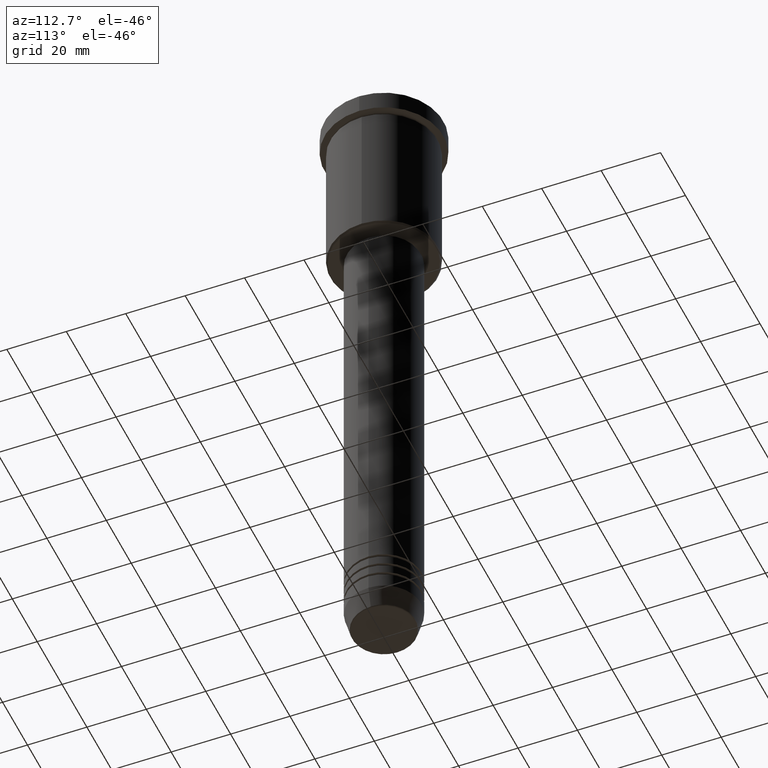
[diagram: clean part render]
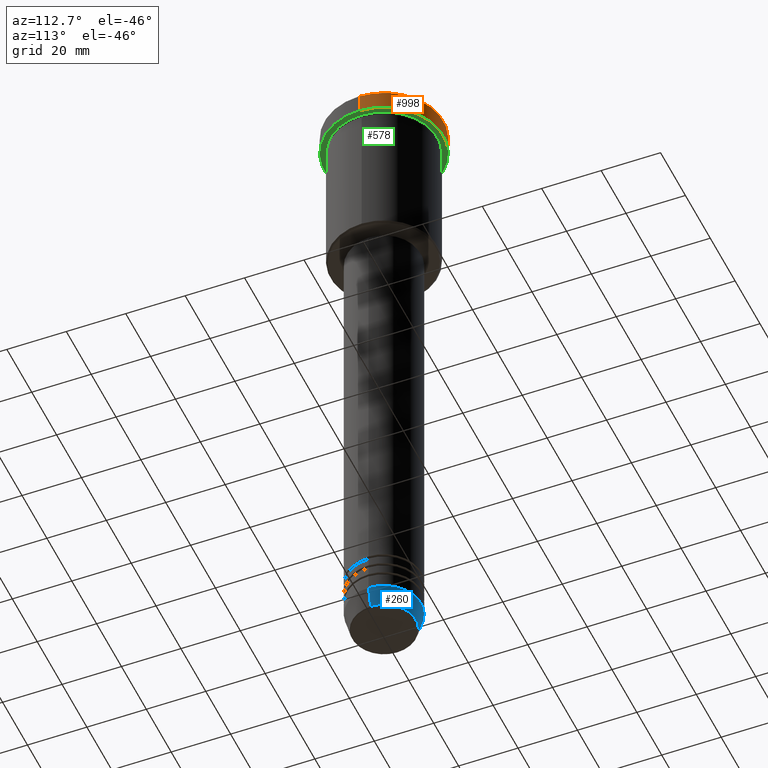
[diagram: same view with three faces highlighted in distinct colors, each labeled with its STEP entity id]
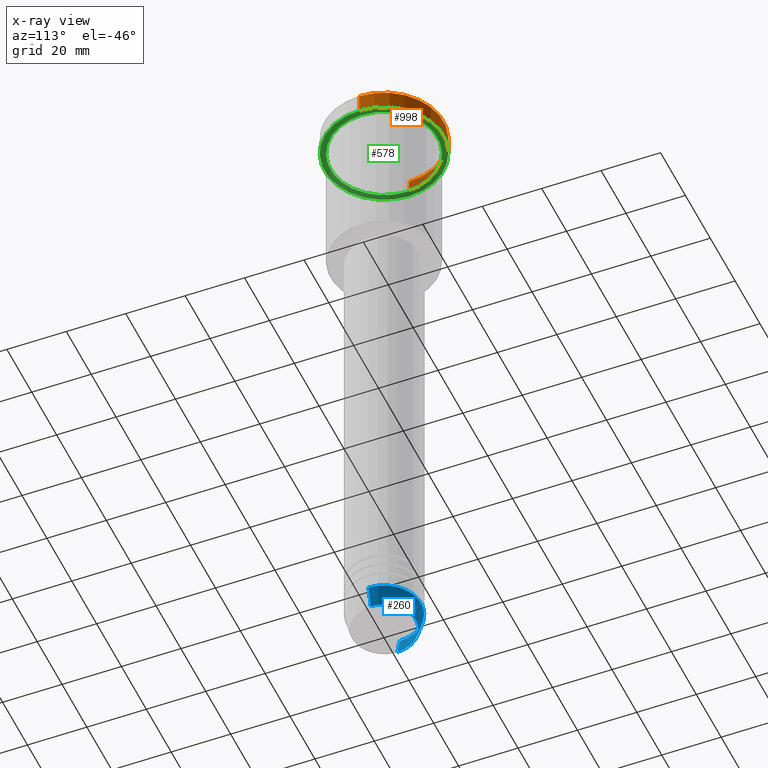
[diagram: x-ray of the same camera — body ghosted, the three highlighted faces saturated]
A machine part, auxiliary view with three faces highlighted in distinct colors.
The next image is the same camera in x-ray (body ghosted, the three faces saturated) — at least one of them is partly hidden behind the body in this view.
Their STEP definitions:

[orange] entity #998 — the highlighted cylindrical surface (partial cylindrical patch) has radius 20 mm, axis along (-0, -0, 1).
#30 = CARTESIAN_POINT ( 'NONE',  ( 0.000000000000000000, 0.000000000000000000, -6.999999999999995559 ) ) ;
#48 = DIRECTION ( 'NONE',  ( 0.000000000000000000, 0.000000000000000000, -1.000000000000000000 ) ) ;
#53 = CARTESIAN_POINT ( 'NONE',  ( 20.00000000000000000, 0.000000000000000000, -6.999999999999995559 ) ) ;
#80 = DIRECTION ( 'NONE',  ( 1.000000000000000000, 0.000000000000000000, 0.000000000000000000 ) ) ;
#98 = DIRECTION ( 'NONE',  ( 1.000000000000000000, 0.000000000000000000, 0.000000000000000000 ) ) ;
#135 = LINE ( 'NONE', #579, #1166 ) ;
#180 = CARTESIAN_POINT ( 'NONE',  ( 20.00000000000000000, 0.000000000000000000, 0.000000000000000000 ) ) ;
#239 = VERTEX_POINT ( 'NONE', #402 ) ;
#247 = VERTEX_POINT ( 'NONE', #413 ) ;
#262 = DIRECTION ( 'NONE',  ( -0.000000000000000000, -0.000000000000000000, 1.000000000000000000 ) ) ;
#284 = EDGE_CURVE ( 'NONE', #945, #239, #636, .T. ) ;
#333 = AXIS2_PLACEMENT_3D ( 'NONE', #429, #262, #80 ) ;
#356 = LINE ( 'NONE', #180, #926 ) ;
#402 = CARTESIAN_POINT ( 'NONE',  ( 20.00000000000000000, 0.000000000000000000, -0.4999999999999970024 ) ) ;
#413 = CARTESIAN_POINT ( 'NONE',  ( -20.00000000000000000, 2.449293598294706513E-15, -6.999999999999995559 ) ) ;
#425 = VERTEX_POINT ( 'NONE', #53 ) ;
#429 = CARTESIAN_POINT ( 'NONE',  ( 0.000000000000000000, 0.000000000000000000, 0.000000000000000000 ) ) ;
#453 = AXIS2_PLACEMENT_3D ( 'NONE', #858, #48, #98 ) ;
#485 = DIRECTION ( 'NONE',  ( -0.000000000000000000, -0.000000000000000000, 1.000000000000000000 ) ) ;
#526 = EDGE_CURVE ( 'NONE', #247, #945, #135, .T. ) ;
#576 = EDGE_CURVE ( 'NONE', #425, #247, #720, .T. ) ;
#577 = ORIENTED_EDGE ( 'NONE', *, *, #284, .T. ) ;
#579 = CARTESIAN_POINT ( 'NONE',  ( -20.00000000000000000, 2.449293598294706513E-15, 0.000000000000000000 ) ) ;
#594 = DIRECTION ( 'NONE',  ( 1.000000000000000000, 0.000000000000000000, 0.000000000000000000 ) ) ;
#636 = CIRCLE ( 'NONE', #453, 20.00000000000000000 ) ;
#661 = ORIENTED_EDGE ( 'NONE', *, *, #576, .T. ) ;
#720 = CIRCLE ( 'NONE', #1035, 20.00000000000000000 ) ;
#783 = FACE_OUTER_BOUND ( 'NONE', #967, .T. ) ;
#844 = DIRECTION ( 'NONE',  ( -0.000000000000000000, -0.000000000000000000, 1.000000000000000000 ) ) ;
#858 = CARTESIAN_POINT ( 'NONE',  ( 0.000000000000000000, 0.000000000000000000, -0.4999999999999970024 ) ) ;
#868 = ORIENTED_EDGE ( 'NONE', *, *, #1052, .F. ) ;
#879 = ORIENTED_EDGE ( 'NONE', *, *, #526, .T. ) ;
#926 = VECTOR ( 'NONE', #1157, 1000.000000000000000 ) ;
#945 = VERTEX_POINT ( 'NONE', #1013 ) ;
#967 = EDGE_LOOP ( 'NONE', ( #661, #879, #577, #868 ) ) ;
#991 = CYLINDRICAL_SURFACE ( 'NONE', #333, 20.00000000000000000 ) ;
#998 = ADVANCED_FACE ( 'NONE', ( #783 ), #991, .T. ) ;
#1013 = CARTESIAN_POINT ( 'NONE',  ( -20.00000000000000000, 2.449293598294706513E-15, -0.4999999999999970024 ) ) ;
#1035 = AXIS2_PLACEMENT_3D ( 'NONE', #30, #485, #594 ) ;
#1052 = EDGE_CURVE ( 'NONE', #425, #239, #356, .T. ) ;
#1157 = DIRECTION ( 'NONE',  ( -0.000000000000000000, -0.000000000000000000, 1.000000000000000000 ) ) ;
#1166 = VECTOR ( 'NONE', #844, 1000.000000000000000 ) ;

[blue] entity #260 — the highlighted conical surface has half-angle 15 deg.
#102 = CARTESIAN_POINT ( 'NONE',  ( 12.50000000000000000, 0.000000000000000000, -213.0000000000000000 ) ) ;
#143 = CONICAL_SURFACE ( 'NONE', #974, 12.50000000000000000, 0.2617993877991500740 ) ;
#146 = DIRECTION ( 'NONE',  ( -0.000000000000000000, -0.000000000000000000, 1.000000000000000000 ) ) ;
#154 = CIRCLE ( 'NONE', #906, 12.50000000000000000 ) ;
#175 = VECTOR ( 'NONE', #456, 1000.000000000000000 ) ;
#188 = EDGE_CURVE ( 'NONE', #1030, #607, #255, .T. ) ;
#193 = VERTEX_POINT ( 'NONE', #528 ) ;
#211 = DIRECTION ( 'NONE',  ( -0.000000000000000000, -0.000000000000000000, 1.000000000000000000 ) ) ;
#213 = CIRCLE ( 'NONE', #241, 10.72365507213719127 ) ;
#232 = DIRECTION ( 'NONE',  ( 1.000000000000000000, 0.000000000000000000, 0.000000000000000000 ) ) ;
#241 = AXIS2_PLACEMENT_3D ( 'NONE', #495, #211, #770 ) ;
#255 = LINE ( 'NONE', #454, #376 ) ;
#260 = ADVANCED_FACE ( 'NONE', ( #1061 ), #143, .T. ) ;
#376 = VECTOR ( 'NONE', #626, 1000.000000000000000 ) ;
#391 = CARTESIAN_POINT ( 'NONE',  ( -12.50000000000000000, 1.530808498934191521E-15, -213.0000000000000000 ) ) ;
#436 = ORIENTED_EDGE ( 'NONE', *, *, #188, .T. ) ;
#454 = CARTESIAN_POINT ( 'NONE',  ( -12.50000000000000000, 1.530808498934191521E-15, -213.0000000000000000 ) ) ;
#456 = DIRECTION ( 'NONE',  ( 0.2588190451025213501, 0.000000000000000000, 0.9659258262890680902 ) ) ;
#495 = CARTESIAN_POINT ( 'NONE',  ( 0.000000000000000000, 0.000000000000000000, -219.6294095225512422 ) ) ;
#505 = ORIENTED_EDGE ( 'NONE', *, *, #539, .T. ) ;
#522 = EDGE_LOOP ( 'NONE', ( #505, #436, #589, #963 ) ) ;
#528 = CARTESIAN_POINT ( 'NONE',  ( 12.50000000000000000, 0.000000000000000000, -213.0000000000000000 ) ) ;
#539 = EDGE_CURVE ( 'NONE', #976, #1030, #213, .T. ) ;
#568 = CARTESIAN_POINT ( 'NONE',  ( 0.000000000000000000, 0.000000000000000000, -213.0000000000000000 ) ) ;
#581 = CARTESIAN_POINT ( 'NONE',  ( 0.000000000000000000, 0.000000000000000000, -213.0000000000000000 ) ) ;
#589 = ORIENTED_EDGE ( 'NONE', *, *, #631, .F. ) ;
#607 = VERTEX_POINT ( 'NONE', #391 ) ;
#626 = DIRECTION ( 'NONE',  ( -0.2588190451025213501, 3.169619151431772337E-17, 0.9659258262890680902 ) ) ;
#631 = EDGE_CURVE ( 'NONE', #193, #607, #154, .T. ) ;
#653 = LINE ( 'NONE', #102, #175 ) ;
#770 = DIRECTION ( 'NONE',  ( 1.000000000000000000, 0.000000000000000000, 0.000000000000000000 ) ) ;
#906 = AXIS2_PLACEMENT_3D ( 'NONE', #568, #920, #1019 ) ;
#920 = DIRECTION ( 'NONE',  ( -0.000000000000000000, -0.000000000000000000, 1.000000000000000000 ) ) ;
#921 = CARTESIAN_POINT ( 'NONE',  ( 10.72365507213719127, 0.000000000000000000, -219.6294095225512422 ) ) ;
#963 = ORIENTED_EDGE ( 'NONE', *, *, #1151, .F. ) ;
#966 = CARTESIAN_POINT ( 'NONE',  ( -10.72365507213719127, 1.422038742429750516E-15, -219.6294095225512422 ) ) ;
#974 = AXIS2_PLACEMENT_3D ( 'NONE', #581, #146, #232 ) ;
#976 = VERTEX_POINT ( 'NONE', #921 ) ;
#1019 = DIRECTION ( 'NONE',  ( 1.000000000000000000, 0.000000000000000000, 0.000000000000000000 ) ) ;
#1030 = VERTEX_POINT ( 'NONE', #966 ) ;
#1061 = FACE_OUTER_BOUND ( 'NONE', #522, .T. ) ;
#1151 = EDGE_CURVE ( 'NONE', #976, #193, #653, .T. ) ;

[green] entity #578 — the highlighted planar face has unit normal (0, 0, -1).
#30 = CARTESIAN_POINT ( 'NONE',  ( 0.000000000000000000, 0.000000000000000000, -6.999999999999995559 ) ) ;
#53 = CARTESIAN_POINT ( 'NONE',  ( 20.00000000000000000, 0.000000000000000000, -6.999999999999995559 ) ) ;
#178 = DIRECTION ( 'NONE',  ( -1.000000000000000000, 0.000000000000000000, 0.000000000000000000 ) ) ;
#216 = ORIENTED_EDGE ( 'NONE', *, *, #1071, .F. ) ;
#238 = DIRECTION ( 'NONE',  ( -0.000000000000000000, -0.000000000000000000, 1.000000000000000000 ) ) ;
#247 = VERTEX_POINT ( 'NONE', #413 ) ;
#253 = EDGE_LOOP ( 'NONE', ( #550, #747 ) ) ;
#314 = DIRECTION ( 'NONE',  ( 0.000000000000000000, 0.000000000000000000, -1.000000000000000000 ) ) ;
#318 = ORIENTED_EDGE ( 'NONE', *, *, #576, .F. ) ;
#334 = CARTESIAN_POINT ( 'NONE',  ( 0.000000000000000000, 0.000000000000000000, -6.999999999999995559 ) ) ;
#363 = AXIS2_PLACEMENT_3D ( 'NONE', #334, #988, #178 ) ;
#388 = FACE_OUTER_BOUND ( 'NONE', #534, .T. ) ;
#398 = CARTESIAN_POINT ( 'NONE',  ( 18.00000000000000000, 2.204364238465235428E-15, -6.999999999999995559 ) ) ;
#413 = CARTESIAN_POINT ( 'NONE',  ( -20.00000000000000000, 2.449293598294706513E-15, -6.999999999999995559 ) ) ;
#425 = VERTEX_POINT ( 'NONE', #53 ) ;
#435 = CIRCLE ( 'NONE', #1181, 18.00000000000000000 ) ;
#447 = CARTESIAN_POINT ( 'NONE',  ( -18.00000000000000000, 0.000000000000000000, -6.999999999999995559 ) ) ;
#475 = EDGE_CURVE ( 'NONE', #643, #525, #910, .T. ) ;
#485 = DIRECTION ( 'NONE',  ( -0.000000000000000000, -0.000000000000000000, 1.000000000000000000 ) ) ;
#513 = AXIS2_PLACEMENT_3D ( 'NONE', #1121, #314, #1043 ) ;
#525 = VERTEX_POINT ( 'NONE', #398 ) ;
#534 = EDGE_LOOP ( 'NONE', ( #318, #216 ) ) ;
#550 = ORIENTED_EDGE ( 'NONE', *, *, #475, .T. ) ;
#576 = EDGE_CURVE ( 'NONE', #425, #247, #720, .T. ) ;
#578 = ADVANCED_FACE ( 'NONE', ( #745, #388 ), #1145, .T. ) ;
#594 = DIRECTION ( 'NONE',  ( 1.000000000000000000, 0.000000000000000000, 0.000000000000000000 ) ) ;
#643 = VERTEX_POINT ( 'NONE', #447 ) ;
#649 = CIRCLE ( 'NONE', #681, 20.00000000000000000 ) ;
#681 = AXIS2_PLACEMENT_3D ( 'NONE', #803, #238, #877 ) ;
#706 = DIRECTION ( 'NONE',  ( -1.000000000000000000, 0.000000000000000000, 0.000000000000000000 ) ) ;
#720 = CIRCLE ( 'NONE', #1035, 20.00000000000000000 ) ;
#745 = FACE_BOUND ( 'NONE', #253, .T. ) ;
#747 = ORIENTED_EDGE ( 'NONE', *, *, #1015, .T. ) ;
#790 = CARTESIAN_POINT ( 'NONE',  ( 0.000000000000000000, 0.000000000000000000, -6.999999999999995559 ) ) ;
#803 = CARTESIAN_POINT ( 'NONE',  ( 0.000000000000000000, 0.000000000000000000, -6.999999999999995559 ) ) ;
#877 = DIRECTION ( 'NONE',  ( 1.000000000000000000, 0.000000000000000000, 0.000000000000000000 ) ) ;
#910 = CIRCLE ( 'NONE', #363, 18.00000000000000000 ) ;
#988 = DIRECTION ( 'NONE',  ( -0.000000000000000000, -0.000000000000000000, 1.000000000000000000 ) ) ;
#1015 = EDGE_CURVE ( 'NONE', #525, #643, #435, .T. ) ;
#1035 = AXIS2_PLACEMENT_3D ( 'NONE', #30, #485, #594 ) ;
#1043 = DIRECTION ( 'NONE',  ( -1.000000000000000000, 0.000000000000000000, -0.000000000000000000 ) ) ;
#1071 = EDGE_CURVE ( 'NONE', #247, #425, #649, .T. ) ;
#1121 = CARTESIAN_POINT ( 'NONE',  ( 0.000000000000000000, 20.00000000000000000, -6.999999999999995559 ) ) ;
#1145 = PLANE ( 'NONE',  #513 ) ;
#1161 = DIRECTION ( 'NONE',  ( -0.000000000000000000, -0.000000000000000000, 1.000000000000000000 ) ) ;
#1181 = AXIS2_PLACEMENT_3D ( 'NONE', #790, #1161, #706 ) ;